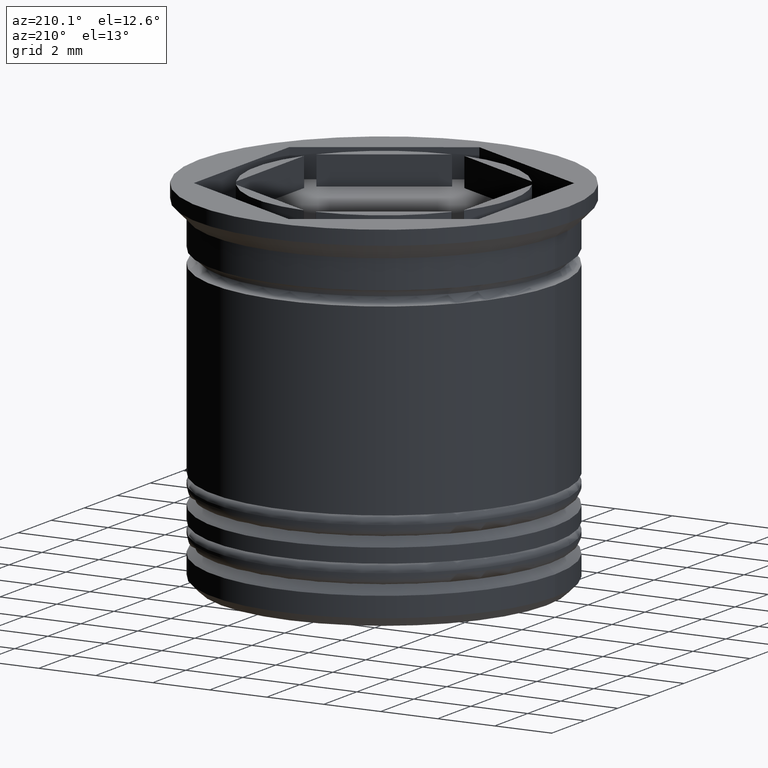
[diagram: clean part render]
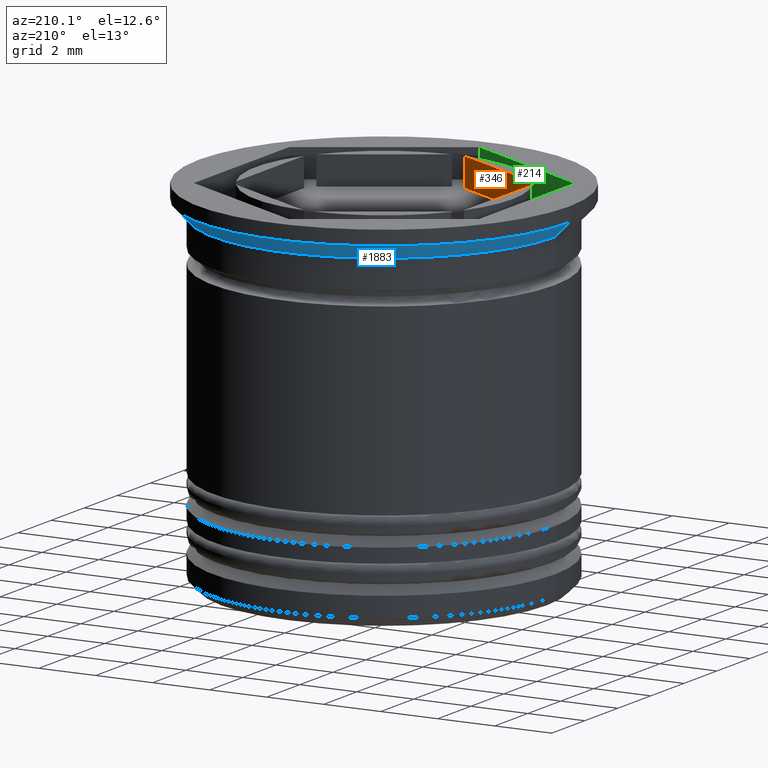
[diagram: same view with three faces highlighted in distinct colors, each labeled with its STEP entity id]
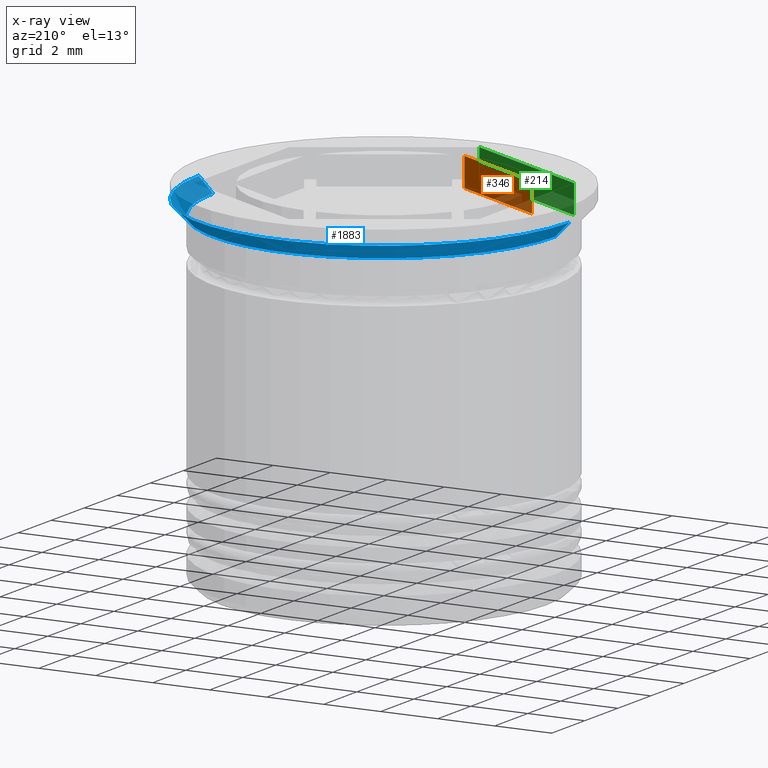
[diagram: x-ray of the same camera — body ghosted, the three highlighted faces saturated]
A machine part, auxiliary view with three faces highlighted in distinct colors.
The next image is the same camera in x-ray (body ghosted, the three faces saturated) — at least one of them is partly hidden behind the body in this view.
Their STEP definitions:

[orange] entity #346 — the highlighted planar face has unit normal (-0.5, -0.866, 0).
#22 = CARTESIAN_POINT ( 'NONE',  ( -0.2146428928642878375, -4.494878021542169755, 0.000000000000000000 ) ) ;
#31 = LINE ( 'NONE', #647, #1881 ) ;
#43 = ORIENTED_EDGE ( 'NONE', *, *, #1574, .F. ) ;
#53 = CARTESIAN_POINT ( 'NONE',  ( -3.785357107135712162, -2.433325208733339906, 0.000000000000000000 ) ) ;
#80 = EDGE_CURVE ( 'NONE', #1719, #1588, #312, .T. ) ;
#107 = PLANE ( 'NONE',  #733 ) ;
#291 = LINE ( 'NONE', #585, #1910 ) ;
#312 = LINE ( 'NONE', #450, #1017 ) ;
#346 = ADVANCED_FACE ( 'NONE', ( #1462 ), #107, .F. ) ;
#417 = ORIENTED_EDGE ( 'NONE', *, *, #80, .T. ) ;
#450 = CARTESIAN_POINT ( 'NONE',  ( -2.000000000000000000, -3.464101615137754830, 0.000000000000000000 ) ) ;
#536 = EDGE_CURVE ( 'NONE', #1719, #1371, #1952, .T. ) ;
#549 = EDGE_CURVE ( 'NONE', #1918, #1371, #291, .T. ) ;
#585 = CARTESIAN_POINT ( 'NONE',  ( -4.000000000000000000, -2.309401076758503368, -1.000000000000000888 ) ) ;
#592 = DIRECTION ( 'NONE',  ( -0.8660254037844387076, 0.5000000000000001110, 0.000000000000000000 ) ) ;
#647 = CARTESIAN_POINT ( 'NONE',  ( -0.2146428928642867551, -4.494878021542169755, 12.72792206135785520 ) ) ;
#733 = AXIS2_PLACEMENT_3D ( 'NONE', #1648, #1138, #1324 ) ;
#782 = ORIENTED_EDGE ( 'NONE', *, *, #549, .T. ) ;
#1017 = VECTOR ( 'NONE', #1962, 999.9999999999998863 ) ;
#1138 = DIRECTION ( 'NONE',  ( -0.5000000000000001110, -0.8660254037844387076, 0.000000000000000000 ) ) ;
#1192 = CARTESIAN_POINT ( 'NONE',  ( -0.2146428928642885037, -4.494878021542171531, -1.000000000000000888 ) ) ;
#1218 = CARTESIAN_POINT ( 'NONE',  ( -3.785357107135713051, -2.433325208733339018, 12.72792206135785520 ) ) ;
#1261 = ORIENTED_EDGE ( 'NONE', *, *, #536, .F. ) ;
#1324 = DIRECTION ( 'NONE',  ( 0.8660254037844385966, -0.5000000000000000000, 0.000000000000000000 ) ) ;
#1371 = VERTEX_POINT ( 'NONE', #1703 ) ;
#1462 = FACE_OUTER_BOUND ( 'NONE', #1869, .T. ) ;
#1529 = DIRECTION ( 'NONE',  ( 0.000000000000000000, 0.000000000000000000, 1.000000000000000000 ) ) ;
#1574 = EDGE_CURVE ( 'NONE', #1918, #1588, #31, .T. ) ;
#1588 = VERTEX_POINT ( 'NONE', #22 ) ;
#1648 = CARTESIAN_POINT ( 'NONE',  ( -4.000000000000000000, -2.309401076758503368, -13.22020185321557584 ) ) ;
#1703 = CARTESIAN_POINT ( 'NONE',  ( -3.785357107135713051, -2.433325208733340794, -1.000000000000000888 ) ) ;
#1718 = VECTOR ( 'NONE', #1960, 1000.000000000000000 ) ;
#1719 = VERTEX_POINT ( 'NONE', #53 ) ;
#1869 = EDGE_LOOP ( 'NONE', ( #417, #43, #782, #1261 ) ) ;
#1881 = VECTOR ( 'NONE', #1529, 1000.000000000000000 ) ;
#1910 = VECTOR ( 'NONE', #592, 999.9999999999998863 ) ;
#1918 = VERTEX_POINT ( 'NONE', #1192 ) ;
#1952 = LINE ( 'NONE', #1218, #1718 ) ;
#1960 = DIRECTION ( 'NONE',  ( -0.000000000000000000, -0.000000000000000000, -1.000000000000000000 ) ) ;
#1962 = DIRECTION ( 'NONE',  ( 0.8660254037844387076, -0.5000000000000001110, 0.000000000000000000 ) ) ;

[blue] entity #1883 — the highlighted conical surface has half-angle 45 deg.
#21 = VERTEX_POINT ( 'NONE', #1912 ) ;
#26 = VERTEX_POINT ( 'NONE', #1495 ) ;
#40 = DIRECTION ( 'NONE',  ( -0.000000000000000000, -0.000000000000000000, 1.000000000000000000 ) ) ;
#46 = CARTESIAN_POINT ( 'NONE',  ( 0.000000000000000000, 0.000000000000000000, -0.9999999999999995559 ) ) ;
#54 = CIRCLE ( 'NONE', #1540, 5.999999999999998224 ) ;
#65 = EDGE_CURVE ( 'NONE', #832, #26, #138, .T. ) ;
#69 = CARTESIAN_POINT ( 'NONE',  ( 0.000000000000000000, 0.000000000000000000, -0.4999999999999956701 ) ) ;
#138 = LINE ( 'NONE', #457, #1302 ) ;
#142 = VERTEX_POINT ( 'NONE', #1970 ) ;
#181 = AXIS2_PLACEMENT_3D ( 'NONE', #738, #1030, #1812 ) ;
#225 = CARTESIAN_POINT ( 'NONE',  ( -5.999999999999998224, 7.347880794884117764E-16, -0.9999999999999995559 ) ) ;
#265 = FACE_OUTER_BOUND ( 'NONE', #454, .T. ) ;
#454 = EDGE_LOOP ( 'NONE', ( #550, #1635, #1580, #1706 ) ) ;
#457 = CARTESIAN_POINT ( 'NONE',  ( -6.500000000000000000, 7.960204194457795477E-16, -0.4999999999999956701 ) ) ;
#550 = ORIENTED_EDGE ( 'NONE', *, *, #1936, .T. ) ;
#738 = CARTESIAN_POINT ( 'NONE',  ( 0.000000000000000000, 0.000000000000000000, -0.4999999999999956701 ) ) ;
#832 = VERTEX_POINT ( 'NONE', #225 ) ;
#1030 = DIRECTION ( 'NONE',  ( -0.000000000000000000, -0.000000000000000000, 1.000000000000000000 ) ) ;
#1044 = LINE ( 'NONE', #1677, #1599 ) ;
#1151 = AXIS2_PLACEMENT_3D ( 'NONE', #69, #40, #1579 ) ;
#1215 = EDGE_CURVE ( 'NONE', #142, #21, #1044, .T. ) ;
#1242 = CIRCLE ( 'NONE', #1151, 6.500000000000000000 ) ;
#1302 = VECTOR ( 'NONE', #1657, 1000.000000000000000 ) ;
#1473 = CONICAL_SURFACE ( 'NONE', #181, 6.500000000000000000, 0.7853981633974509435 ) ;
#1495 = CARTESIAN_POINT ( 'NONE',  ( -6.500000000000000000, 7.960204194457795477E-16, -0.4999999999999956701 ) ) ;
#1536 = DIRECTION ( 'NONE',  ( 1.000000000000000000, 0.000000000000000000, 0.000000000000000000 ) ) ;
#1540 = AXIS2_PLACEMENT_3D ( 'NONE', #46, #1732, #1536 ) ;
#1579 = DIRECTION ( 'NONE',  ( -1.000000000000000000, 0.000000000000000000, 0.000000000000000000 ) ) ;
#1580 = ORIENTED_EDGE ( 'NONE', *, *, #1673, .F. ) ;
#1599 = VECTOR ( 'NONE', #1696, 1000.000000000000000 ) ;
#1635 = ORIENTED_EDGE ( 'NONE', *, *, #65, .T. ) ;
#1657 = DIRECTION ( 'NONE',  ( -0.7071067811865493491, 8.659560562354955045E-17, 0.7071067811865456854 ) ) ;
#1673 = EDGE_CURVE ( 'NONE', #21, #26, #1242, .T. ) ;
#1677 = CARTESIAN_POINT ( 'NONE',  ( 6.500000000000000000, 0.000000000000000000, -0.4999999999999956701 ) ) ;
#1696 = DIRECTION ( 'NONE',  ( 0.7071067811865493491, 0.000000000000000000, 0.7071067811865456854 ) ) ;
#1706 = ORIENTED_EDGE ( 'NONE', *, *, #1215, .F. ) ;
#1732 = DIRECTION ( 'NONE',  ( -0.000000000000000000, -0.000000000000000000, 1.000000000000000000 ) ) ;
#1812 = DIRECTION ( 'NONE',  ( 1.000000000000000000, 0.000000000000000000, 0.000000000000000000 ) ) ;
#1883 = ADVANCED_FACE ( 'NONE', ( #265 ), #1473, .T. ) ;
#1912 = CARTESIAN_POINT ( 'NONE',  ( 6.500000000000000000, 0.000000000000000000, -0.4999999999999956701 ) ) ;
#1936 = EDGE_CURVE ( 'NONE', #142, #832, #54, .T. ) ;
#1970 = CARTESIAN_POINT ( 'NONE',  ( 5.999999999999998224, 0.000000000000000000, -0.9999999999999995559 ) ) ;

[green] entity #214 — the highlighted planar face has unit normal (-0.5, -0.866, 0).
#18 = VECTOR ( 'NONE', #984, 1000.000000000000000 ) ;
#135 = ORIENTED_EDGE ( 'NONE', *, *, #1181, .F. ) ;
#174 = VECTOR ( 'NONE', #1228, 1000.000000000000000 ) ;
#214 = ADVANCED_FACE ( 'NONE', ( #1382 ), #757, .F. ) ;
#263 = LINE ( 'NONE', #1159, #764 ) ;
#357 = EDGE_CURVE ( 'NONE', #980, #388, #263, .T. ) ;
#370 = EDGE_LOOP ( 'NONE', ( #393, #135, #876, #1230 ) ) ;
#388 = VERTEX_POINT ( 'NONE', #400 ) ;
#393 = ORIENTED_EDGE ( 'NONE', *, *, #621, .T. ) ;
#400 = CARTESIAN_POINT ( 'NONE',  ( -5.000000000000000000, -2.886751345948129543, 0.000000000000000000 ) ) ;
#418 = CARTESIAN_POINT ( 'NONE',  ( -5.000000000000000000, -2.886751345948129543, 0.000000000000000000 ) ) ;
#432 = CARTESIAN_POINT ( 'NONE',  ( 8.334195073742550113E-16, -5.773502691896256422, -1.000000000000000000 ) ) ;
#514 = CARTESIAN_POINT ( 'NONE',  ( -5.000000000000000000, -2.886751345948129543, -1.000000000000000000 ) ) ;
#590 = CARTESIAN_POINT ( 'NONE',  ( -5.000000000000000000, -2.886751345948129543, -1.000000000000000000 ) ) ;
#621 = EDGE_CURVE ( 'NONE', #388, #1325, #1802, .T. ) ;
#757 = PLANE ( 'NONE',  #1560 ) ;
#764 = VECTOR ( 'NONE', #866, 1000.000000000000000 ) ;
#866 = DIRECTION ( 'NONE',  ( -0.000000000000000000, -0.000000000000000000, 1.000000000000000000 ) ) ;
#876 = ORIENTED_EDGE ( 'NONE', *, *, #1742, .F. ) ;
#980 = VERTEX_POINT ( 'NONE', #590 ) ;
#984 = DIRECTION ( 'NONE',  ( 0.8660254037844388186, -0.4999999999999996114, 0.000000000000000000 ) ) ;
#1076 = LINE ( 'NONE', #432, #174 ) ;
#1159 = CARTESIAN_POINT ( 'NONE',  ( -5.000000000000000000, -2.886751345948129543, -1.000000000000000000 ) ) ;
#1181 = EDGE_CURVE ( 'NONE', #1737, #1325, #1076, .T. ) ;
#1228 = DIRECTION ( 'NONE',  ( -0.000000000000000000, -0.000000000000000000, 1.000000000000000000 ) ) ;
#1230 = ORIENTED_EDGE ( 'NONE', *, *, #357, .T. ) ;
#1286 = CARTESIAN_POINT ( 'NONE',  ( 8.334195073742550113E-16, -5.773502691896256422, -1.000000000000000000 ) ) ;
#1325 = VERTEX_POINT ( 'NONE', #1878 ) ;
#1341 = VECTOR ( 'NONE', #1393, 1000.000000000000000 ) ;
#1374 = DIRECTION ( 'NONE',  ( 0.8660254037844389297, -0.4999999999999996114, 0.000000000000000000 ) ) ;
#1382 = FACE_OUTER_BOUND ( 'NONE', #370, .T. ) ;
#1393 = DIRECTION ( 'NONE',  ( 0.8660254037844388186, -0.4999999999999996114, 0.000000000000000000 ) ) ;
#1454 = LINE ( 'NONE', #514, #18 ) ;
#1560 = AXIS2_PLACEMENT_3D ( 'NONE', #1676, #1992, #1374 ) ;
#1676 = CARTESIAN_POINT ( 'NONE',  ( -5.000000000000000000, -2.886751345948129543, -1.000000000000000000 ) ) ;
#1737 = VERTEX_POINT ( 'NONE', #1286 ) ;
#1742 = EDGE_CURVE ( 'NONE', #980, #1737, #1454, .T. ) ;
#1802 = LINE ( 'NONE', #418, #1341 ) ;
#1878 = CARTESIAN_POINT ( 'NONE',  ( 8.334195073742550113E-16, -5.773502691896256422, 0.000000000000000000 ) ) ;
#1992 = DIRECTION ( 'NONE',  ( -0.4999999999999996114, -0.8660254037844389297, 0.000000000000000000 ) ) ;